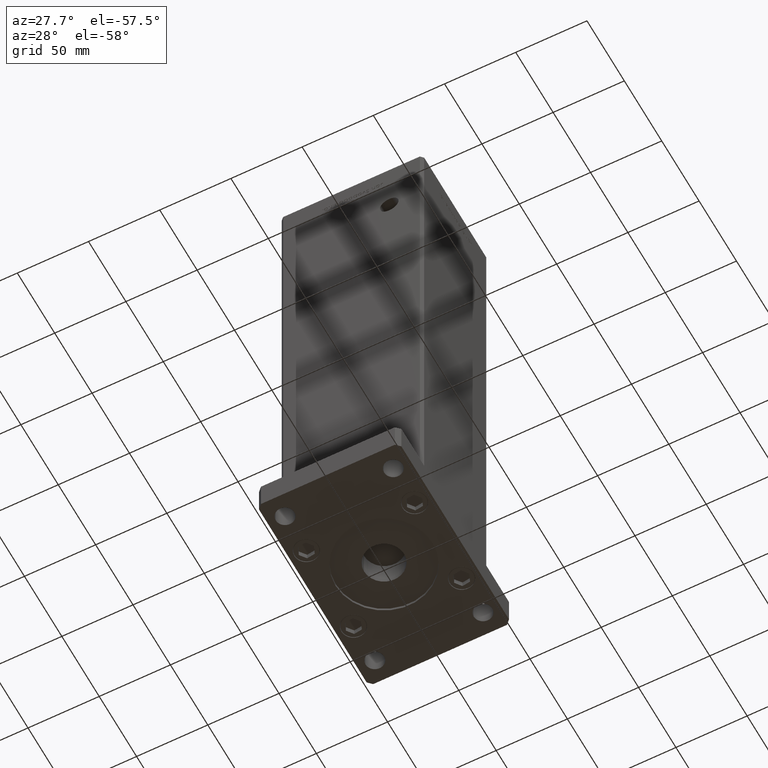
[diagram: clean part render]
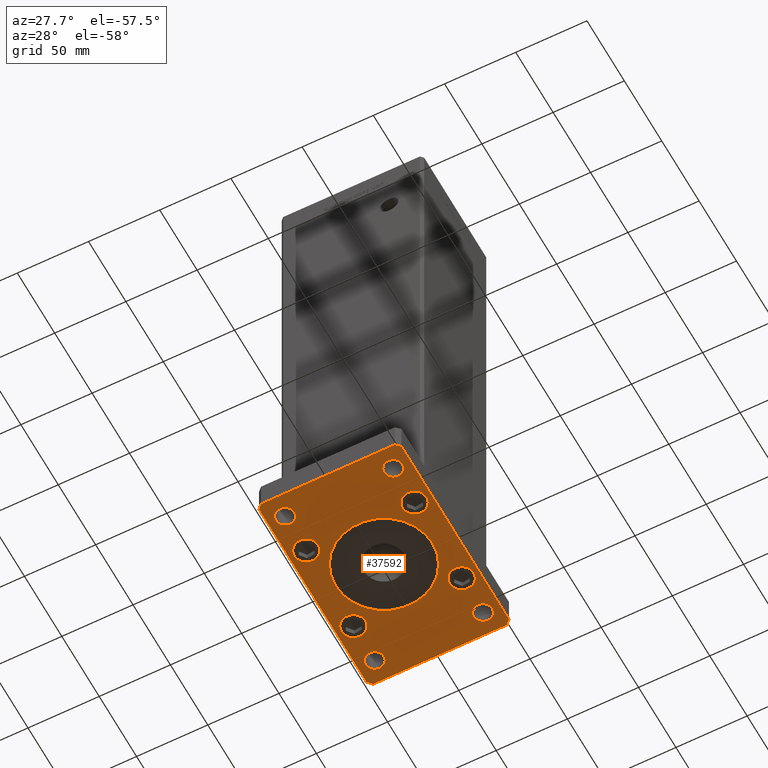
[diagram: same view with one face highlighted and labeled with its STEP entity id]
A machine part, auxiliary view. The second image highlights one B-rep face of the part: STEP entity #37592.
In plain terms, the highlighted planar face has unit normal (0, 0, 1).
Its self-contained STEP definition (entity closure, byte-faithful):
#379 = CARTESIAN_POINT ( 'NONE',  ( -46.50000000000000711, -31.50000000000000000, 0.000000000000000000 ) ) ;
#969 = CIRCLE ( 'NONE', #31568, 6.499999999999999112 ) ;
#1178 = AXIS2_PLACEMENT_3D ( 'NONE', #50099, #41339, #3828 ) ;
#1908 = CARTESIAN_POINT ( 'NONE',  ( 37.99999999999997868, -60.00000000000000711, 0.000000000000000000 ) ) ;
#1955 = CARTESIAN_POINT ( 'NONE',  ( 29.49999999999999645, -31.49999999999999289, 0.000000000000000000 ) ) ;
#2301 = DIRECTION ( 'NONE',  ( 0.000000000000000000, 0.000000000000000000, 1.000000000000000000 ) ) ;
#2464 = EDGE_CURVE ( 'NONE', #11701, #46478, #17121, .T. ) ;
#2637 = EDGE_LOOP ( 'NONE', ( #45685, #53213 ) ) ;
#2921 = VERTEX_POINT ( 'NONE', #26079 ) ;
#3096 = ORIENTED_EDGE ( 'NONE', *, *, #42517, .T. ) ;
#3287 = CARTESIAN_POINT ( 'NONE',  ( 37.99999999999997868, -60.00000000000000711, 0.000000000000000000 ) ) ;
#3303 = ORIENTED_EDGE ( 'NONE', *, *, #45973, .T. ) ;
#3644 = ORIENTED_EDGE ( 'NONE', *, *, #14227, .T. ) ;
#3701 = LINE ( 'NONE', #52735, #23508 ) ;
#3828 = DIRECTION ( 'NONE',  ( 1.000000000000000000, 0.000000000000000000, 0.000000000000000000 ) ) ;
#3977 = DIRECTION ( 'NONE',  ( -1.000000000000000000, 0.000000000000000000, 0.000000000000000000 ) ) ;
#4249 = ORIENTED_EDGE ( 'NONE', *, *, #25747, .T. ) ;
#4416 = FACE_OUTER_BOUND ( 'NONE', #18858, .T. ) ;
#4700 = DIRECTION ( 'NONE',  ( 0.000000000000000000, 0.000000000000000000, 1.000000000000000000 ) ) ;
#4769 = VERTEX_POINT ( 'NONE', #26968 ) ;
#4774 = LINE ( 'NONE', #50232, #50014 ) ;
#5164 = VECTOR ( 'NONE', #44812, 1000.000000000000000 ) ;
#5203 = VECTOR ( 'NONE', #46936, 1000.000000000000000 ) ;
#5281 = AXIS2_PLACEMENT_3D ( 'NONE', #32926, #53756, #45528 ) ;
#5498 = DIRECTION ( 'NONE',  ( 1.000000000000000000, 0.000000000000000000, 0.000000000000000000 ) ) ;
#6057 = EDGE_CURVE ( 'NONE', #35025, #6596, #34069, .T. ) ;
#6062 = CARTESIAN_POINT ( 'NONE',  ( 37.99999999999999289, -31.49999999999999289, 0.000000000000000000 ) ) ;
#6125 = EDGE_CURVE ( 'NONE', #49760, #47400, #21892, .T. ) ;
#6328 = ORIENTED_EDGE ( 'NONE', *, *, #27866, .F. ) ;
#6596 = VERTEX_POINT ( 'NONE', #42271 ) ;
#6603 = DIRECTION ( 'NONE',  ( 0.000000000000000000, 0.000000000000000000, 1.000000000000000000 ) ) ;
#7112 = CARTESIAN_POINT ( 'NONE',  ( -47.00000000000002842, 75.00000000000002842, 0.000000000000000000 ) ) ;
#7330 = DIRECTION ( 'NONE',  ( 1.000000000000000000, 0.000000000000000000, 0.000000000000000000 ) ) ;
#7359 = DIRECTION ( 'NONE',  ( 0.000000000000000000, 0.000000000000000000, 1.000000000000000000 ) ) ;
#7953 = VERTEX_POINT ( 'NONE', #38957 ) ;
#8051 = CIRCLE ( 'NONE', #44795, 8.499999999999992895 ) ;
#8317 = AXIS2_PLACEMENT_3D ( 'NONE', #27647, #10414, #31485 ) ;
#8528 = EDGE_CURVE ( 'NONE', #24570, #49586, #17402, .T. ) ;
#8683 = CARTESIAN_POINT ( 'NONE',  ( -50.00000000000001421, 72.00000000000000000, 0.000000000000000000 ) ) ;
#8793 = FACE_BOUND ( 'NONE', #41994, .T. ) ;
#9068 = DIRECTION ( 'NONE',  ( 0.000000000000000000, 0.000000000000000000, 1.000000000000000000 ) ) ;
#9707 = DIRECTION ( 'NONE',  ( 0.000000000000000000, 0.000000000000000000, 1.000000000000000000 ) ) ;
#10053 = CARTESIAN_POINT ( 'NONE',  ( 31.50000000000000000, 59.99999999999998579, 0.000000000000000000 ) ) ;
#10196 = AXIS2_PLACEMENT_3D ( 'NONE', #53604, #53333, #7330 ) ;
#10414 = DIRECTION ( 'NONE',  ( 0.000000000000000000, 0.000000000000000000, 1.000000000000000000 ) ) ;
#10479 = AXIS2_PLACEMENT_3D ( 'NONE', #29866, #13701, #5498 ) ;
#10521 = CARTESIAN_POINT ( 'NONE',  ( -34.00000000000000000, 0.000000000000000000, 0.000000000000000000 ) ) ;
#10598 = CARTESIAN_POINT ( 'NONE',  ( -31.49999999999999289, 59.99999999999999289, 0.000000000000000000 ) ) ;
#10952 = DIRECTION ( 'NONE',  ( -0.7071067811865425767, -0.7071067811865525687, 0.000000000000000000 ) ) ;
#10974 = AXIS2_PLACEMENT_3D ( 'NONE', #16286, #49711, #24787 ) ;
#11268 = DIRECTION ( 'NONE',  ( 0.000000000000000000, 1.000000000000000000, 0.000000000000000000 ) ) ;
#11645 = AXIS2_PLACEMENT_3D ( 'NONE', #34777, #9068, #30682 ) ;
#11701 = VERTEX_POINT ( 'NONE', #18766 ) ;
#11991 = CARTESIAN_POINT ( 'NONE',  ( 44.49999999999997868, -60.00000000000000711, 0.000000000000000000 ) ) ;
#12077 = CARTESIAN_POINT ( 'NONE',  ( 50.00000000000000000, -71.99999999999988631, 0.000000000000000000 ) ) ;
#12114 = AXIS2_PLACEMENT_3D ( 'NONE', #17984, #25921, #47017 ) ;
#12170 = CARTESIAN_POINT ( 'NONE',  ( 47.00000000000002132, 75.00000000000002842, 0.000000000000000000 ) ) ;
#12315 = ORIENTED_EDGE ( 'NONE', *, *, #30778, .T. ) ;
#12446 = DIRECTION ( 'NONE',  ( 0.7071067811865459074, 0.7071067811865491270, 0.000000000000000000 ) ) ;
#12872 = VERTEX_POINT ( 'NONE', #10521 ) ;
#12937 = VECTOR ( 'NONE', #25367, 1000.000000000000000 ) ;
#13126 = CIRCLE ( 'NONE', #5281, 8.500000000000000000 ) ;
#13203 = DIRECTION ( 'NONE',  ( 0.000000000000000000, 0.000000000000000000, 1.000000000000000000 ) ) ;
#13397 = AXIS2_PLACEMENT_3D ( 'NONE', #21092, #4700, #38065 ) ;
#13438 = VERTEX_POINT ( 'NONE', #10053 ) ;
#13445 = VERTEX_POINT ( 'NONE', #31664 ) ;
#13456 = VERTEX_POINT ( 'NONE', #30585 ) ;
#13701 = DIRECTION ( 'NONE',  ( 0.000000000000000000, 0.000000000000000000, 1.000000000000000000 ) ) ;
#13782 = DIRECTION ( 'NONE',  ( 0.000000000000000000, 0.000000000000000000, -1.000000000000000000 ) ) ;
#13860 = CARTESIAN_POINT ( 'NONE',  ( 31.49999999999997868, -60.00000000000000711, 0.000000000000000000 ) ) ;
#14227 = EDGE_CURVE ( 'NONE', #49586, #24570, #969, .T. ) ;
#14530 = AXIS2_PLACEMENT_3D ( 'NONE', #26054, #13203, #37840 ) ;
#14558 = VERTEX_POINT ( 'NONE', #28315 ) ;
#14875 = CARTESIAN_POINT ( 'NONE',  ( -47.00000000000000000, -75.00000000000000000, 0.000000000000000000 ) ) ;
#15011 = DIRECTION ( 'NONE',  ( 1.000000000000000000, 0.000000000000000000, 0.000000000000000000 ) ) ;
#15419 = CARTESIAN_POINT ( 'NONE',  ( -38.00000000000000711, -31.50000000000000000, 0.000000000000000000 ) ) ;
#15717 = VERTEX_POINT ( 'NONE', #43866 ) ;
#16141 = DIRECTION ( 'NONE',  ( 1.000000000000000000, 0.000000000000000000, 0.000000000000000000 ) ) ;
#16286 = CARTESIAN_POINT ( 'NONE',  ( -37.99999999999997868, -60.00000000000000711, 0.000000000000000000 ) ) ;
#16371 = CARTESIAN_POINT ( 'NONE',  ( -49.99999999999998579, -72.00000000000001421, 0.000000000000000000 ) ) ;
#16480 = AXIS2_PLACEMENT_3D ( 'NONE', #21700, #13782, #34587 ) ;
#17121 = LINE ( 'NONE', #46710, #27858 ) ;
#17402 = CIRCLE ( 'NONE', #19162, 6.499999999999999112 ) ;
#17495 = AXIS2_PLACEMENT_3D ( 'NONE', #34345, #9707, #39252 ) ;
#17984 = CARTESIAN_POINT ( 'NONE',  ( 38.00000000000000000, 59.99999999999998579, 0.000000000000000000 ) ) ;
#18655 = VERTEX_POINT ( 'NONE', #22539 ) ;
#18692 = EDGE_LOOP ( 'NONE', ( #26953, #19234 ) ) ;
#18713 = CARTESIAN_POINT ( 'NONE',  ( -50.00000000000001421, 72.00000000000000000, 0.000000000000000000 ) ) ;
#18766 = CARTESIAN_POINT ( 'NONE',  ( 50.00000000000000000, 72.00000000000001421, 0.000000000000000000 ) ) ;
#18843 = CARTESIAN_POINT ( 'NONE',  ( -38.00000000000000711, 31.50000000000000000, 0.000000000000000000 ) ) ;
#18858 = EDGE_LOOP ( 'NONE', ( #47732, #47696, #29867, #49199, #48612, #28892, #6328, #31871 ) ) ;
#19162 = AXIS2_PLACEMENT_3D ( 'NONE', #3287, #53674, #16141 ) ;
#19234 = ORIENTED_EDGE ( 'NONE', *, *, #6057, .T. ) ;
#19687 = EDGE_CURVE ( 'NONE', #47400, #35995, #46201, .T. ) ;
#19956 = CIRCLE ( 'NONE', #16480, 34.00000000000000000 ) ;
#20437 = EDGE_CURVE ( 'NONE', #34279, #4769, #31350, .T. ) ;
#20461 = EDGE_CURVE ( 'NONE', #13438, #23336, #41822, .T. ) ;
#20633 = EDGE_CURVE ( 'NONE', #12872, #42428, #19956, .T. ) ;
#20736 = EDGE_LOOP ( 'NONE', ( #3303, #35993 ) ) ;
#20824 = FACE_BOUND ( 'NONE', #21851, .T. ) ;
#21092 = CARTESIAN_POINT ( 'NONE',  ( 0.000000000000000000, 0.000000000000000000, 0.000000000000000000 ) ) ;
#21350 = EDGE_CURVE ( 'NONE', #35995, #2921, #3701, .T. ) ;
#21365 = FACE_BOUND ( 'NONE', #37663, .T. ) ;
#21700 = CARTESIAN_POINT ( 'NONE',  ( 0.000000000000000000, 0.000000000000000000, 0.000000000000000000 ) ) ;
#21851 = EDGE_LOOP ( 'NONE', ( #29885, #3644 ) ) ;
#21892 = LINE ( 'NONE', #7112, #46355 ) ;
#22305 = EDGE_CURVE ( 'NONE', #2921, #7953, #52399, .T. ) ;
#22539 = CARTESIAN_POINT ( 'NONE',  ( 46.49999999999998579, 31.49999999999999289, 0.000000000000000000 ) ) ;
#23336 = VERTEX_POINT ( 'NONE', #26777 ) ;
#23508 = VECTOR ( 'NONE', #36814, 1000.000000000000114 ) ;
#24038 = DIRECTION ( 'NONE',  ( 1.000000000000000000, 0.000000000000000000, 0.000000000000000000 ) ) ;
#24252 = CARTESIAN_POINT ( 'NONE',  ( 47.00000000000002132, 75.00000000000002842, 0.000000000000000000 ) ) ;
#24386 = ORIENTED_EDGE ( 'NONE', *, *, #37928, .T. ) ;
#24570 = VERTEX_POINT ( 'NONE', #13860 ) ;
#24663 = AXIS2_PLACEMENT_3D ( 'NONE', #15419, #2301, #40624 ) ;
#24776 = CIRCLE ( 'NONE', #1178, 8.500000000000000000 ) ;
#24787 = DIRECTION ( 'NONE',  ( 1.000000000000000000, 0.000000000000000000, 0.000000000000000000 ) ) ;
#25367 = DIRECTION ( 'NONE',  ( 1.927470528863118802E-16, -1.000000000000000000, 0.000000000000000000 ) ) ;
#25477 = FACE_BOUND ( 'NONE', #49287, .T. ) ;
#25615 = EDGE_CURVE ( 'NONE', #27075, #18655, #36722, .T. ) ;
#25747 = EDGE_CURVE ( 'NONE', #29550, #13445, #13126, .T. ) ;
#25921 = DIRECTION ( 'NONE',  ( 0.000000000000000000, 0.000000000000000000, 1.000000000000000000 ) ) ;
#26054 = CARTESIAN_POINT ( 'NONE',  ( 38.00000000000000000, 59.99999999999998579, 0.000000000000000000 ) ) ;
#26079 = CARTESIAN_POINT ( 'NONE',  ( -47.00000000000000000, -75.00000000000000000, 0.000000000000000000 ) ) ;
#26268 = DIRECTION ( 'NONE',  ( 0.000000000000000000, 0.000000000000000000, 1.000000000000000000 ) ) ;
#26612 = CIRCLE ( 'NONE', #30993, 8.500000000000000000 ) ;
#26777 = CARTESIAN_POINT ( 'NONE',  ( 44.50000000000000000, 59.99999999999998579, 0.000000000000000000 ) ) ;
#26924 = ORIENTED_EDGE ( 'NONE', *, *, #20461, .T. ) ;
#26953 = ORIENTED_EDGE ( 'NONE', *, *, #32132, .T. ) ;
#26968 = CARTESIAN_POINT ( 'NONE',  ( 46.49999999999998579, -31.49999999999999289, 0.000000000000000000 ) ) ;
#27075 = VERTEX_POINT ( 'NONE', #32555 ) ;
#27289 = CIRCLE ( 'NONE', #24663, 8.500000000000000000 ) ;
#27647 = CARTESIAN_POINT ( 'NONE',  ( 37.99999999999999289, 31.49999999999999289, 0.000000000000000000 ) ) ;
#27858 = VECTOR ( 'NONE', #42051, 999.9999999999998863 ) ;
#27866 = EDGE_CURVE ( 'NONE', #14558, #11701, #28514, .T. ) ;
#28100 = LINE ( 'NONE', #24252, #5164 ) ;
#28315 = CARTESIAN_POINT ( 'NONE',  ( 50.00000000000000000, -71.99999999999988631, 0.000000000000000000 ) ) ;
#28514 = LINE ( 'NONE', #12077, #39467 ) ;
#28518 = CIRCLE ( 'NONE', #14530, 6.499999999999999112 ) ;
#28792 = FACE_BOUND ( 'NONE', #20736, .T. ) ;
#28890 = CARTESIAN_POINT ( 'NONE',  ( -29.50000000000000711, 31.50000000000000000, 0.000000000000000000 ) ) ;
#28892 = ORIENTED_EDGE ( 'NONE', *, *, #2464, .F. ) ;
#29038 = ORIENTED_EDGE ( 'NONE', *, *, #25615, .T. ) ;
#29331 = FACE_BOUND ( 'NONE', #18692, .T. ) ;
#29550 = VERTEX_POINT ( 'NONE', #28890 ) ;
#29866 = CARTESIAN_POINT ( 'NONE',  ( -37.99999999999999289, 59.99999999999999289, 0.000000000000000000 ) ) ;
#29867 = ORIENTED_EDGE ( 'NONE', *, *, #19687, .F. ) ;
#29885 = ORIENTED_EDGE ( 'NONE', *, *, #8528, .T. ) ;
#30120 = DIRECTION ( 'NONE',  ( 1.000000000000000000, 0.000000000000000000, 0.000000000000000000 ) ) ;
#30510 = ORIENTED_EDGE ( 'NONE', *, *, #20633, .F. ) ;
#30585 = CARTESIAN_POINT ( 'NONE',  ( -31.49999999999997868, -60.00000000000000711, 0.000000000000000000 ) ) ;
#30682 = DIRECTION ( 'NONE',  ( 1.000000000000000000, 0.000000000000000000, 0.000000000000000000 ) ) ;
#30778 = EDGE_CURVE ( 'NONE', #36420, #39017, #27289, .T. ) ;
#30993 = AXIS2_PLACEMENT_3D ( 'NONE', #18843, #40743, #15011 ) ;
#31350 = CIRCLE ( 'NONE', #40101, 8.499999999999992895 ) ;
#31485 = DIRECTION ( 'NONE',  ( 1.000000000000000000, 0.000000000000000000, 0.000000000000000000 ) ) ;
#31568 = AXIS2_PLACEMENT_3D ( 'NONE', #1908, #26268, #30120 ) ;
#31664 = CARTESIAN_POINT ( 'NONE',  ( -46.50000000000000711, 31.50000000000000000, 0.000000000000000000 ) ) ;
#31871 = ORIENTED_EDGE ( 'NONE', *, *, #53054, .F. ) ;
#31934 = CIRCLE ( 'NONE', #8317, 8.499999999999992895 ) ;
#32132 = EDGE_CURVE ( 'NONE', #6596, #35025, #35253, .T. ) ;
#32555 = CARTESIAN_POINT ( 'NONE',  ( 29.49999999999999645, 31.49999999999999289, 0.000000000000000000 ) ) ;
#32926 = CARTESIAN_POINT ( 'NONE',  ( -38.00000000000000711, 31.50000000000000000, 0.000000000000000000 ) ) ;
#33435 = FACE_BOUND ( 'NONE', #2637, .T. ) ;
#33702 = PLANE ( 'NONE',  #13397 ) ;
#34069 = CIRCLE ( 'NONE', #10479, 6.499999999999999112 ) ;
#34207 = EDGE_CURVE ( 'NONE', #4769, #34279, #8051, .T. ) ;
#34279 = VERTEX_POINT ( 'NONE', #1955 ) ;
#34345 = CARTESIAN_POINT ( 'NONE',  ( 37.99999999999999289, 31.49999999999999289, 0.000000000000000000 ) ) ;
#34587 = DIRECTION ( 'NONE',  ( -1.000000000000000000, 0.000000000000000000, 0.000000000000000000 ) ) ;
#34777 = CARTESIAN_POINT ( 'NONE',  ( -37.99999999999999289, 59.99999999999999289, 0.000000000000000000 ) ) ;
#34927 = EDGE_LOOP ( 'NONE', ( #12315, #24386 ) ) ;
#35025 = VERTEX_POINT ( 'NONE', #10598 ) ;
#35253 = CIRCLE ( 'NONE', #11645, 6.499999999999999112 ) ;
#35539 = CIRCLE ( 'NONE', #10196, 6.499999999999999112 ) ;
#35993 = ORIENTED_EDGE ( 'NONE', *, *, #43275, .T. ) ;
#35995 = VERTEX_POINT ( 'NONE', #16371 ) ;
#36175 = AXIS2_PLACEMENT_3D ( 'NONE', #49172, #45061, #3977 ) ;
#36420 = VERTEX_POINT ( 'NONE', #379 ) ;
#36722 = CIRCLE ( 'NONE', #17495, 8.499999999999992895 ) ;
#36814 = DIRECTION ( 'NONE',  ( 0.7071067811865474617, -0.7071067811865474617, 0.000000000000000000 ) ) ;
#37111 = CARTESIAN_POINT ( 'NONE',  ( -47.00000000000002842, 75.00000000000002842, 0.000000000000000000 ) ) ;
#37328 = CARTESIAN_POINT ( 'NONE',  ( 34.00000000000000000, 4.163799117101000559E-15, 0.000000000000000000 ) ) ;
#37592 = ADVANCED_FACE ( 'NONE', ( #8793, #4416, #28792, #25477, #29331, #53726, #33435, #49886, #21365, #20824 ), #33702, .F. ) ;
#37663 = EDGE_LOOP ( 'NONE', ( #39262, #4249 ) ) ;
#37840 = DIRECTION ( 'NONE',  ( 1.000000000000000000, 0.000000000000000000, 0.000000000000000000 ) ) ;
#37928 = EDGE_CURVE ( 'NONE', #39017, #36420, #24776, .T. ) ;
#38065 = DIRECTION ( 'NONE',  ( 1.000000000000000000, 0.000000000000000000, -0.000000000000000000 ) ) ;
#38901 = ORIENTED_EDGE ( 'NONE', *, *, #39482, .F. ) ;
#38957 = CARTESIAN_POINT ( 'NONE',  ( 47.00000000000001421, -74.99999999999988631, 0.000000000000000000 ) ) ;
#39017 = VERTEX_POINT ( 'NONE', #48961 ) ;
#39252 = DIRECTION ( 'NONE',  ( 1.000000000000000000, 0.000000000000000000, 0.000000000000000000 ) ) ;
#39262 = ORIENTED_EDGE ( 'NONE', *, *, #39919, .T. ) ;
#39467 = VECTOR ( 'NONE', #11268, 1000.000000000000000 ) ;
#39482 = EDGE_CURVE ( 'NONE', #42428, #12872, #45819, .T. ) ;
#39919 = EDGE_CURVE ( 'NONE', #13445, #29550, #26612, .T. ) ;
#40101 = AXIS2_PLACEMENT_3D ( 'NONE', #48981, #7359, #24038 ) ;
#40624 = DIRECTION ( 'NONE',  ( 1.000000000000000000, 0.000000000000000000, 0.000000000000000000 ) ) ;
#40743 = DIRECTION ( 'NONE',  ( 0.000000000000000000, 0.000000000000000000, 1.000000000000000000 ) ) ;
#41339 = DIRECTION ( 'NONE',  ( 0.000000000000000000, 0.000000000000000000, 1.000000000000000000 ) ) ;
#41822 = CIRCLE ( 'NONE', #12114, 6.499999999999999112 ) ;
#41994 = EDGE_LOOP ( 'NONE', ( #30510, #38901 ) ) ;
#42051 = DIRECTION ( 'NONE',  ( -0.7071067811865435759, 0.7071067811865515695, 0.000000000000000000 ) ) ;
#42271 = CARTESIAN_POINT ( 'NONE',  ( -44.49999999999999289, 59.99999999999999289, 0.000000000000000000 ) ) ;
#42428 = VERTEX_POINT ( 'NONE', #37328 ) ;
#42517 = EDGE_CURVE ( 'NONE', #18655, #27075, #31934, .T. ) ;
#43275 = EDGE_CURVE ( 'NONE', #13456, #15717, #52101, .T. ) ;
#43310 = DIRECTION ( 'NONE',  ( 1.000000000000000000, 0.000000000000000000, 0.000000000000000000 ) ) ;
#43330 = ORIENTED_EDGE ( 'NONE', *, *, #44500, .T. ) ;
#43866 = CARTESIAN_POINT ( 'NONE',  ( -44.49999999999997868, -60.00000000000000711, 0.000000000000000000 ) ) ;
#44500 = EDGE_CURVE ( 'NONE', #23336, #13438, #28518, .T. ) ;
#44795 = AXIS2_PLACEMENT_3D ( 'NONE', #6062, #6603, #43310 ) ;
#44812 = DIRECTION ( 'NONE',  ( -1.000000000000000000, 0.000000000000000000, 0.000000000000000000 ) ) ;
#45061 = DIRECTION ( 'NONE',  ( 0.000000000000000000, 0.000000000000000000, -1.000000000000000000 ) ) ;
#45528 = DIRECTION ( 'NONE',  ( 1.000000000000000000, 0.000000000000000000, 0.000000000000000000 ) ) ;
#45685 = ORIENTED_EDGE ( 'NONE', *, *, #20437, .T. ) ;
#45819 = CIRCLE ( 'NONE', #36175, 34.00000000000000000 ) ;
#45973 = EDGE_CURVE ( 'NONE', #15717, #13456, #35539, .T. ) ;
#46201 = LINE ( 'NONE', #8683, #12937 ) ;
#46355 = VECTOR ( 'NONE', #10952, 999.9999999999998863 ) ;
#46478 = VERTEX_POINT ( 'NONE', #12170 ) ;
#46710 = CARTESIAN_POINT ( 'NONE',  ( 50.00000000000000000, 72.00000000000001421, 0.000000000000000000 ) ) ;
#46936 = DIRECTION ( 'NONE',  ( 1.000000000000000000, 1.181088324069315250E-15, 0.000000000000000000 ) ) ;
#47017 = DIRECTION ( 'NONE',  ( 1.000000000000000000, 0.000000000000000000, 0.000000000000000000 ) ) ;
#47400 = VERTEX_POINT ( 'NONE', #18713 ) ;
#47696 = ORIENTED_EDGE ( 'NONE', *, *, #21350, .F. ) ;
#47732 = ORIENTED_EDGE ( 'NONE', *, *, #22305, .F. ) ;
#48612 = ORIENTED_EDGE ( 'NONE', *, *, #50545, .F. ) ;
#48961 = CARTESIAN_POINT ( 'NONE',  ( -29.50000000000000711, -31.50000000000000000, 0.000000000000000000 ) ) ;
#48981 = CARTESIAN_POINT ( 'NONE',  ( 37.99999999999999289, -31.49999999999999289, 0.000000000000000000 ) ) ;
#49172 = CARTESIAN_POINT ( 'NONE',  ( 0.000000000000000000, 0.000000000000000000, 0.000000000000000000 ) ) ;
#49199 = ORIENTED_EDGE ( 'NONE', *, *, #6125, .F. ) ;
#49287 = EDGE_LOOP ( 'NONE', ( #26924, #43330 ) ) ;
#49586 = VERTEX_POINT ( 'NONE', #11991 ) ;
#49711 = DIRECTION ( 'NONE',  ( 0.000000000000000000, 0.000000000000000000, 1.000000000000000000 ) ) ;
#49760 = VERTEX_POINT ( 'NONE', #37111 ) ;
#49886 = FACE_BOUND ( 'NONE', #53638, .T. ) ;
#50014 = VECTOR ( 'NONE', #12446, 1000.000000000000114 ) ;
#50099 = CARTESIAN_POINT ( 'NONE',  ( -38.00000000000000711, -31.50000000000000000, 0.000000000000000000 ) ) ;
#50232 = CARTESIAN_POINT ( 'NONE',  ( 47.00000000000001421, -74.99999999999988631, 0.000000000000000000 ) ) ;
#50545 = EDGE_CURVE ( 'NONE', #46478, #49760, #28100, .T. ) ;
#52101 = CIRCLE ( 'NONE', #10974, 6.499999999999999112 ) ;
#52399 = LINE ( 'NONE', #14875, #5203 ) ;
#52735 = CARTESIAN_POINT ( 'NONE',  ( -49.99999999999998579, -72.00000000000001421, 0.000000000000000000 ) ) ;
#53054 = EDGE_CURVE ( 'NONE', #7953, #14558, #4774, .T. ) ;
#53213 = ORIENTED_EDGE ( 'NONE', *, *, #34207, .T. ) ;
#53333 = DIRECTION ( 'NONE',  ( 0.000000000000000000, 0.000000000000000000, 1.000000000000000000 ) ) ;
#53604 = CARTESIAN_POINT ( 'NONE',  ( -37.99999999999997868, -60.00000000000000711, 0.000000000000000000 ) ) ;
#53638 = EDGE_LOOP ( 'NONE', ( #29038, #3096 ) ) ;
#53674 = DIRECTION ( 'NONE',  ( 0.000000000000000000, 0.000000000000000000, 1.000000000000000000 ) ) ;
#53726 = FACE_BOUND ( 'NONE', #34927, .T. ) ;
#53756 = DIRECTION ( 'NONE',  ( 0.000000000000000000, 0.000000000000000000, 1.000000000000000000 ) ) ;